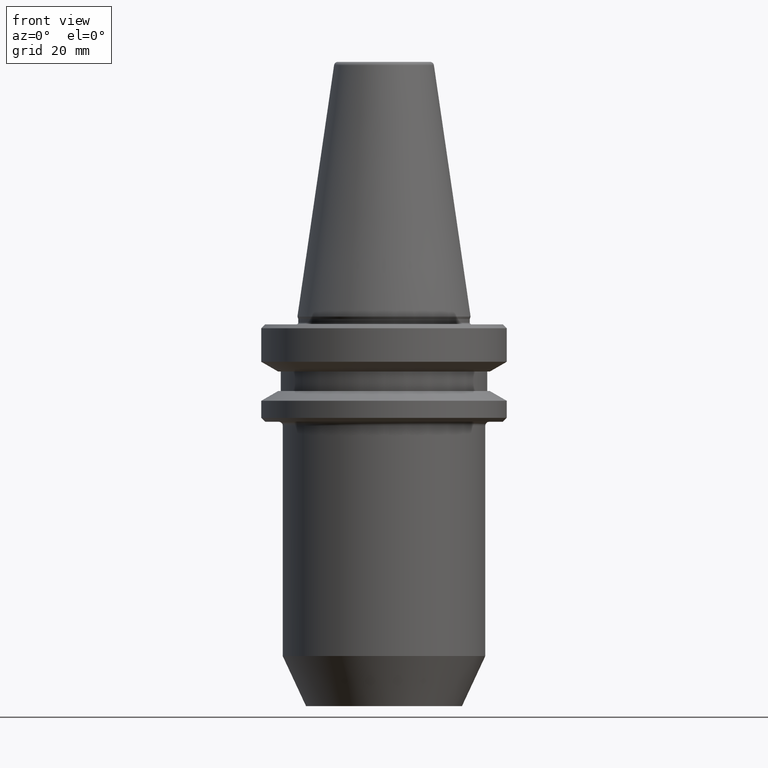
[diagram: clean part render]
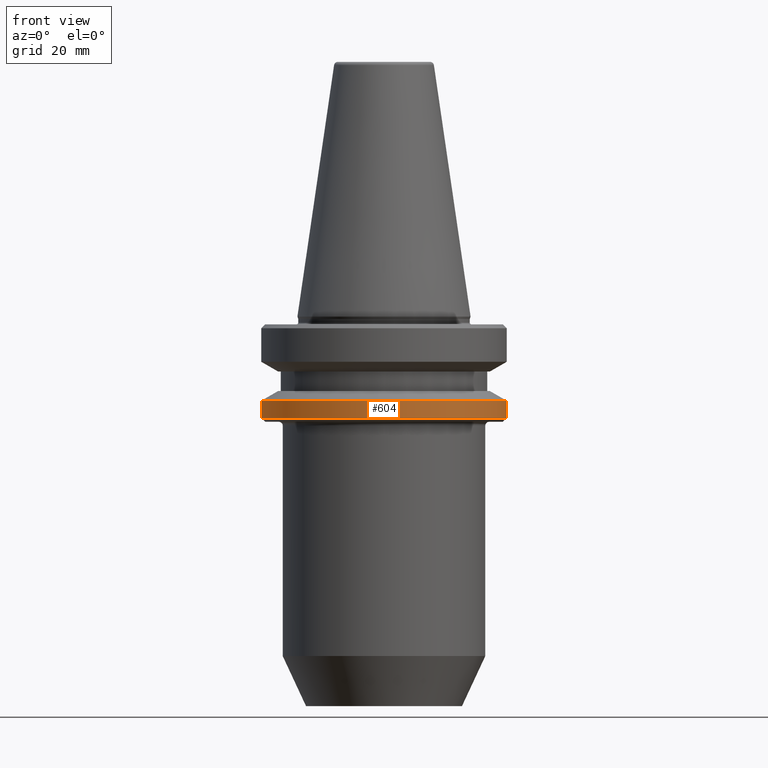
[diagram: same view with one face highlighted and labeled with its STEP entity id]
A machine part, front view. The second image highlights one B-rep face of the part: STEP entity #604.
In plain terms, the highlighted cylindrical surface (partial cylindrical patch) has radius 31.5 mm, axis along (-0, -0, 1).
Its self-contained STEP definition (entity closure, byte-faithful):
#13 = EDGE_CURVE ( 'NONE', #212, #180, #187, .T. ) ;
#42 = AXIS2_PLACEMENT_3D ( 'NONE', #355, #324, #312 ) ;
#116 = VERTEX_POINT ( 'NONE', #285 ) ;
#150 = AXIS2_PLACEMENT_3D ( 'NONE', #532, #1042, #447 ) ;
#180 = VERTEX_POINT ( 'NONE', #534 ) ;
#187 = CIRCLE ( 'NONE', #801, 31.50000000000019500 ) ;
#210 = EDGE_CURVE ( 'NONE', #345, #116, #721, .T. ) ;
#212 = VERTEX_POINT ( 'NONE', #542 ) ;
#224 = DIRECTION ( 'NONE',  ( -0.0000000000000000000, -0.0000000000000000000, 1.000000000000000000 ) ) ;
#232 = DIRECTION ( 'NONE',  ( -0.0000000000000000000, -0.0000000000000000000, 1.000000000000000000 ) ) ;
#285 = CARTESIAN_POINT ( 'NONE',  ( 31.50000000000019500, 0.0000000000000000000, -25.31128678844346400 ) ) ;
#312 = DIRECTION ( 'NONE',  ( 1.000000000000000000, 0.0000000000000000000, 0.0000000000000000000 ) ) ;
#324 = DIRECTION ( 'NONE',  ( -0.0000000000000000000, -0.0000000000000000000, 1.000000000000000000 ) ) ;
#345 = VERTEX_POINT ( 'NONE', #618 ) ;
#355 = CARTESIAN_POINT ( 'NONE',  ( 0.0000000000000000000, 0.0000000000000000000, -25.31128678844346400 ) ) ;
#368 = FACE_OUTER_BOUND ( 'NONE', #612, .T. ) ;
#395 = ORIENTED_EDGE ( 'NONE', *, *, #13, .F. ) ;
#447 = DIRECTION ( 'NONE',  ( 1.000000000000000000, 0.0000000000000000000, 0.0000000000000000000 ) ) ;
#492 = ORIENTED_EDGE ( 'NONE', *, *, #210, .T. ) ;
#532 = CARTESIAN_POINT ( 'NONE',  ( 0.0000000000000000000, 0.0000000000000000000, 82.74845858742440900 ) ) ;
#534 = CARTESIAN_POINT ( 'NONE',  ( 31.50000000000019500, 0.0000000000000000000, -20.91142879476059900 ) ) ;
#542 = CARTESIAN_POINT ( 'NONE',  ( -31.50000000000019500, 3.857637417314186400E-015, -20.91142879476059900 ) ) ;
#550 = CYLINDRICAL_SURFACE ( 'NONE', #150, 31.50000000000019500 ) ;
#569 = VECTOR ( 'NONE', #923, 1000.000000000000000 ) ;
#572 = LINE ( 'NONE', #833, #569 ) ;
#604 = ADVANCED_FACE ( 'NONE', ( #368 ), #550, .T. ) ;
#612 = EDGE_LOOP ( 'NONE', ( #947, #492, #926, #395 ) ) ;
#618 = CARTESIAN_POINT ( 'NONE',  ( -31.50000000000019500, 3.857637417314186400E-015, -25.31128678844346400 ) ) ;
#721 = CIRCLE ( 'NONE', #42, 31.50000000000019500 ) ;
#734 = CARTESIAN_POINT ( 'NONE',  ( 31.50000000000019500, 0.0000000000000000000, 82.74845858742440900 ) ) ;
#769 = DIRECTION ( 'NONE',  ( 1.000000000000000000, 0.0000000000000000000, 0.0000000000000000000 ) ) ;
#801 = AXIS2_PLACEMENT_3D ( 'NONE', #961, #232, #769 ) ;
#833 = CARTESIAN_POINT ( 'NONE',  ( -31.50000000000019500, 3.857637417314186400E-015, 82.74845858742440900 ) ) ;
#869 = EDGE_CURVE ( 'NONE', #116, #180, #1033, .T. ) ;
#923 = DIRECTION ( 'NONE',  ( -0.0000000000000000000, -0.0000000000000000000, 1.000000000000000000 ) ) ;
#926 = ORIENTED_EDGE ( 'NONE', *, *, #869, .T. ) ;
#947 = ORIENTED_EDGE ( 'NONE', *, *, #1010, .F. ) ;
#961 = CARTESIAN_POINT ( 'NONE',  ( 0.0000000000000000000, 0.0000000000000000000, -20.91142879476059900 ) ) ;
#1010 = EDGE_CURVE ( 'NONE', #345, #212, #572, .T. ) ;
#1022 = VECTOR ( 'NONE', #224, 1000.000000000000000 ) ;
#1033 = LINE ( 'NONE', #734, #1022 ) ;
#1042 = DIRECTION ( 'NONE',  ( -0.0000000000000000000, -0.0000000000000000000, 1.000000000000000000 ) ) ;